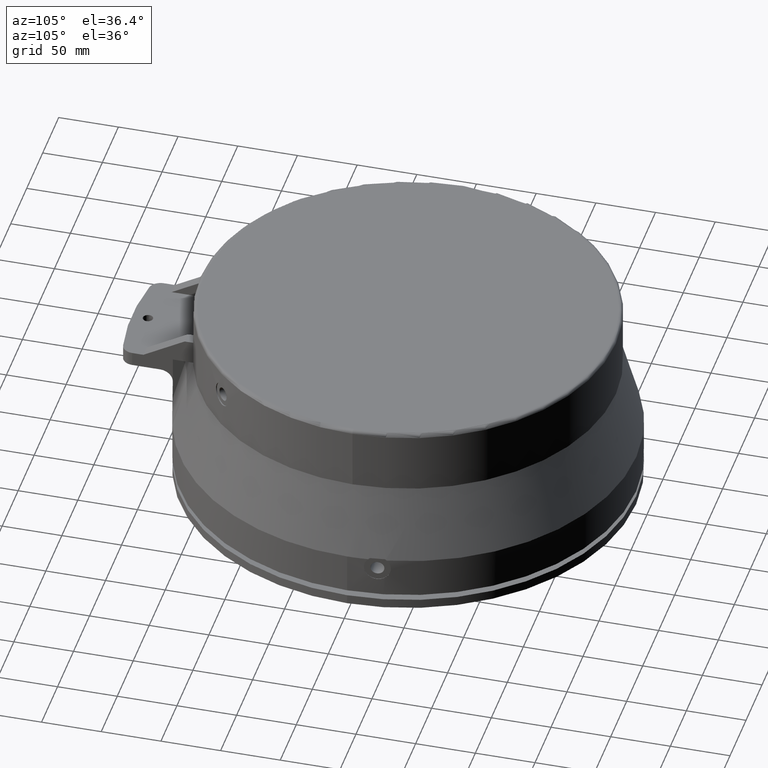
[diagram: clean part render]
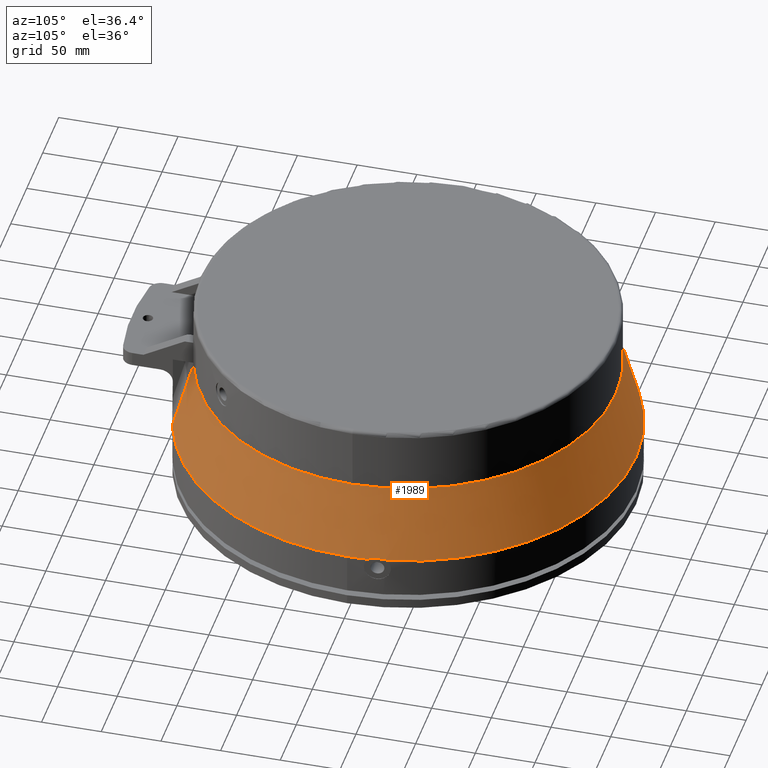
[diagram: same view with one face highlighted and labeled with its STEP entity id]
A machine part, auxiliary view. The second image highlights one B-rep face of the part: STEP entity #1989.
In plain terms, the highlighted conical surface has half-angle 15.72 deg.
Its self-contained STEP definition (entity closure, byte-faithful):
#497=CARTESIAN_POINT('',(1.897839813246E2,1.869086122203E1,-1.129417364054E2));
#498=CARTESIAN_POINT('',(1.896476387070E2,1.972648622049E1,-1.128202834176E2));
#499=CARTESIAN_POINT('',(1.893754390385E2,2.179404797228E1,-1.126388102967E2));
#500=CARTESIAN_POINT('',(1.889693884037E2,2.487830875151E1,-1.125488296855E2));
#501=CARTESIAN_POINT('',(1.885633386199E2,2.796256306663E1,-1.126388121376E2));
#502=CARTESIAN_POINT('',(1.882911410555E2,3.003010883571E1,-1.128202846586E2));
#503=CARTESIAN_POINT('',(1.881547998311E2,3.106572325226E1,-1.129417364054E2));
#505=CARTESIAN_POINT('',(1.902034237236E2,1.742577412389E1,-1.14E2));
#506=CARTESIAN_POINT('',(1.901308880635E2,1.762239571214E1,-1.138070948723E2));
#507=CARTESIAN_POINT('',(1.899882693923E2,1.803069902934E1,-1.134371324244E2));
#508=CARTESIAN_POINT('',(1.898510863945E2,1.846664076037E1,-1.131009293669E2));
#509=CARTESIAN_POINT('',(1.897839813246E2,1.869086122203E1,-1.129417364054E2));
#511=CARTESIAN_POINT('',(2.094146026542E-14,0.E0,-1.14E2));
#512=DIRECTION('',(0.E0,0.E0,-1.E0));
#513=DIRECTION('',(9.958294435791E-1,9.123441949679E-2,0.E0));
#514=AXIS2_PLACEMENT_3D('',#511,#512,#513);
#516=CARTESIAN_POINT('',(2.094146026542E-14,0.E0,-1.14E2));
#517=DIRECTION('',(0.E0,0.E0,1.E0));
#518=DIRECTION('',(2.881513109847E-1,-9.575848902201E-1,0.E0));
#519=AXIS2_PLACEMENT_3D('',#516,#517,#518);
#521=CARTESIAN_POINT('',(5.503690039807E1,-1.828987140320E2,-1.139999999987E2));
#522=CARTESIAN_POINT('',(5.474718693386E1,-1.818213447260E2,-1.100379238483E2));
#523=CARTESIAN_POINT('',(5.417371786113E1,-1.796888944865E2,-1.021957633565E2));
#524=CARTESIAN_POINT('',(5.334940767138E1,-1.766240644472E2,-9.092481470710E1));
#525=CARTESIAN_POINT('',(5.250694617317E1,-1.734921412124E2,-7.940720462829E1));
#526=CARTESIAN_POINT('',(5.161304177718E1,-1.701694354113E2,-6.718808081505E1));
#527=CARTESIAN_POINT('',(5.095861759099E1,-1.677372830593E2,-5.824400623595E1));
#528=CARTESIAN_POINT('',(5.061878816478E1,-1.664744373313E2,-5.359999999881E1));
#530=CARTESIAN_POINT('',(-5.061878816674E1,-1.664744373307E2,
-5.359999999921E1));
#531=CARTESIAN_POINT('',(-5.087594516429E1,-1.674300626847E2,
-5.711422981429E1));
#532=CARTESIAN_POINT('',(-5.140221243744E1,-1.693858692463E2,
-6.430656517530E1));
#533=CARTESIAN_POINT('',(-5.221674512934E1,-1.724133975939E2,
-7.544015750489E1));
#534=CARTESIAN_POINT('',(-5.308856059522E1,-1.756542873794E2,
-8.735846069128E1));
#535=CARTESIAN_POINT('',(-5.402259537675E1,-1.791269626982E2,
-1.001292430571E2));
#536=CARTESIAN_POINT('',(-5.469137628018E1,-1.816137993661E2,
-1.092746660507E2));
#537=CARTESIAN_POINT('',(-5.503690039805E1,-1.828987140319E2,
-1.139999999974E2));
#539=CARTESIAN_POINT('',(2.094146026542E-14,0.E0,-1.14E2));
#540=DIRECTION('',(0.E0,0.E0,1.E0));
#541=DIRECTION('',(-1.E0,0.E0,0.E0));
#542=AXIS2_PLACEMENT_3D('',#539,#540,#541);
#544=CARTESIAN_POINT('',(2.094146026542E-14,0.E0,-1.14E2));
#545=DIRECTION('',(0.E0,0.E0,-1.E0));
#546=DIRECTION('',(-1.E0,0.E0,0.E0));
#547=AXIS2_PLACEMENT_3D('',#544,#545,#546);
#549=CARTESIAN_POINT('',(1.881547998311E2,3.106572325226E1,-1.129417364054E2));
#550=CARTESIAN_POINT('',(1.881615847349E2,3.129963406449E1,-1.131009037866E2));
#551=CARTESIAN_POINT('',(1.881812602597E2,3.175619336975E1,-1.134370757594E2));
#552=CARTESIAN_POINT('',(1.882133437246E2,3.218753442892E1,-1.138070640690E2));
#553=CARTESIAN_POINT('',(1.882325214422E2,3.239626323403E1,-1.14E2));
#1021=CARTESIAN_POINT('',(0.E0,0.E0,-5.36E1));
#1022=DIRECTION('',(0.E0,0.E0,1.E0));
#1023=DIRECTION('',(2.909125755924E-1,-9.567496398548E-1,0.E0));
#1024=AXIS2_PLACEMENT_3D('',#1021,#1022,#1023);
#1035=CARTESIAN_POINT('',(5.061878816478E1,-1.664744373313E2,
-5.359999999881E1));
#1089=CARTESIAN_POINT('',(0.E0,0.E0,-5.36E1));
#1090=DIRECTION('',(0.E0,0.E0,1.E0));
#1091=DIRECTION('',(-1.E0,0.E0,0.E0));
#1092=AXIS2_PLACEMENT_3D('',#1089,#1090,#1091);
#1307=CARTESIAN_POINT('',(0.E0,0.E0,-5.36E1));
#1308=DIRECTION('',(0.E0,0.E0,-1.E0));
#1309=DIRECTION('',(-1.E0,0.E0,0.E0));
#1310=AXIS2_PLACEMENT_3D('',#1307,#1308,#1309);
#1476=CARTESIAN_POINT('',(-1.74E2,0.E0,-5.36E1));
#1477=CARTESIAN_POINT('',(1.74E2,2.130885430516E-14,-5.36E1));
#1478=VERTEX_POINT('',#1476);
#1479=VERTEX_POINT('',#1477);
#1641=CARTESIAN_POINT('',(-1.91E2,0.E0,-1.14E2));
#1642=VERTEX_POINT('',#1641);
#1643=CARTESIAN_POINT('',(1.91E2,-2.047676173922E-14,-1.14E2));
#1644=VERTEX_POINT('',#1643);
#1647=VERTEX_POINT('',#1035);
#1648=VERTEX_POINT('',#521);
#1650=VERTEX_POINT('',#530);
#1651=VERTEX_POINT('',#537);
#1665=VERTEX_POINT('',#497);
#1666=VERTEX_POINT('',#503);
#1667=VERTEX_POINT('',#553);
#1668=VERTEX_POINT('',#505);
#1963=CARTESIAN_POINT('',(1.539381026515E-14,0.E0,-8.379999999926E1));
#1964=DIRECTION('',(0.E0,0.E0,-1.E0));
#1965=DIRECTION('',(1.E0,0.E0,0.E0));
#1966=AXIS2_PLACEMENT_3D('',#1963,#1964,#1965);
#1967=CONICAL_SURFACE('',#1966,1.824999999998E2,1.571962560902E1);
#1969=ORIENTED_EDGE('',*,*,#1968,.F.);
#1971=ORIENTED_EDGE('',*,*,#1970,.F.);
#1972=ORIENTED_EDGE('',*,*,#1761,.T.);
#1973=ORIENTED_EDGE('',*,*,#1871,.F.);
#1975=ORIENTED_EDGE('',*,*,#1974,.T.);
#1977=ORIENTED_EDGE('',*,*,#1976,.T.);
#1979=ORIENTED_EDGE('',*,*,#1978,.F.);
#1981=ORIENTED_EDGE('',*,*,#1980,.T.);
#1982=ORIENTED_EDGE('',*,*,#1951,.T.);
#1983=ORIENTED_EDGE('',*,*,#1876,.F.);
#1984=ORIENTED_EDGE('',*,*,#1753,.T.);
#1986=ORIENTED_EDGE('',*,*,#1985,.F.);
#1987=EDGE_LOOP('',(#1969,#1971,#1972,#1973,#1975,#1977,#1979,#1981,#1982,#1983,
#1984,#1986));
#1988=FACE_OUTER_BOUND('',#1987,.F.);
#504=B_SPLINE_CURVE_WITH_KNOTS('',3,(#497,#498,#499,#500,#501,#502,#503),
.UNSPECIFIED.,.F.,.F.,(4,1,1,1,4),(0.E0,2.5E-1,5.E-1,7.5E-1,1.E0),
.UNSPECIFIED.);
#510=B_SPLINE_CURVE_WITH_KNOTS('',3,(#505,#506,#507,#508,#509),.UNSPECIFIED.,
.F.,.F.,(4,1,4),(0.E0,5.E-1,1.E0),.UNSPECIFIED.);
#515=CIRCLE('',#514,1.91E2);
#520=CIRCLE('',#519,1.91E2);
#529=B_SPLINE_CURVE_WITH_KNOTS('',3,(#521,#522,#523,#524,#525,#526,#527,#528),
.UNSPECIFIED.,.F.,.F.,(4,1,1,1,1,4),(0.E0,2.E-1,4.E-1,6.E-1,8.E-1,1.E0),
.UNSPECIFIED.);
#538=B_SPLINE_CURVE_WITH_KNOTS('',3,(#530,#531,#532,#533,#534,#535,#536,#537),
.UNSPECIFIED.,.F.,.F.,(4,1,1,1,1,4),(0.E0,2.E-1,4.E-1,6.E-1,8.E-1,1.E0),
.UNSPECIFIED.);
#543=CIRCLE('',#542,1.91E2);
#548=CIRCLE('',#547,1.91E2);
#554=B_SPLINE_CURVE_WITH_KNOTS('',3,(#549,#550,#551,#552,#553),.UNSPECIFIED.,
.F.,.F.,(4,1,4),(0.E0,5.E-1,1.E0),.UNSPECIFIED.);
#1025=CIRCLE('',#1024,1.74E2);
#1093=CIRCLE('',#1092,1.74E2);
#1311=CIRCLE('',#1310,1.74E2);
#1753=EDGE_CURVE('',#1642,#1667,#548,.T.);
#1761=EDGE_CURVE('',#1668,#1644,#515,.T.);
#1871=EDGE_CURVE('',#1648,#1644,#520,.T.);
#1876=EDGE_CURVE('',#1642,#1651,#543,.T.);
#1951=EDGE_CURVE('',#1650,#1651,#538,.T.);
#1968=EDGE_CURVE('',#1665,#1666,#504,.T.);
#1970=EDGE_CURVE('',#1668,#1665,#510,.T.);
#1974=EDGE_CURVE('',#1648,#1647,#529,.T.);
#1976=EDGE_CURVE('',#1647,#1479,#1025,.T.);
#1978=EDGE_CURVE('',#1478,#1479,#1311,.T.);
#1980=EDGE_CURVE('',#1478,#1650,#1093,.T.);
#1985=EDGE_CURVE('',#1666,#1667,#554,.T.);
#1989=ADVANCED_FACE('',(#1988),#1967,.T.);